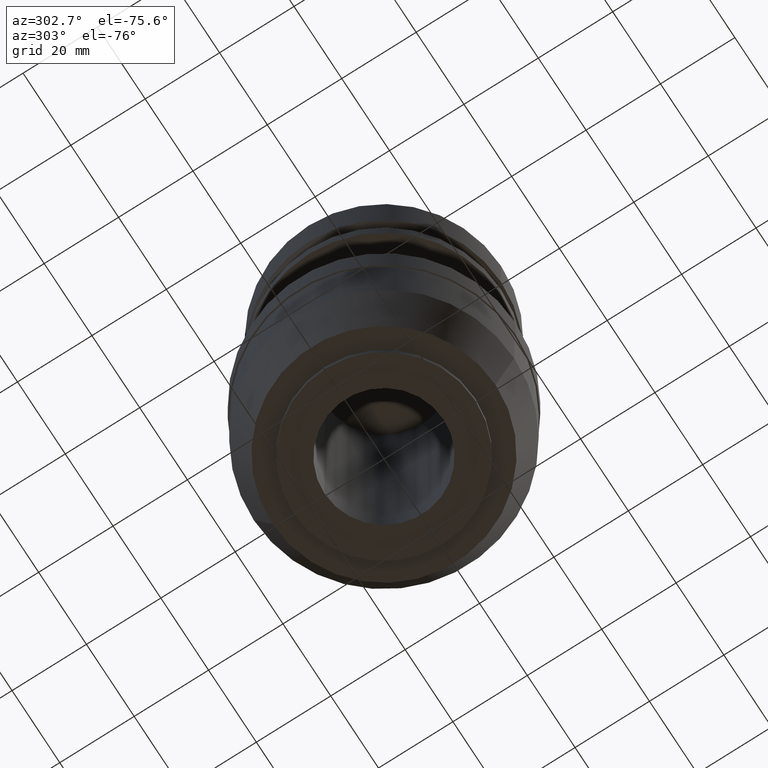
[diagram: clean part render]
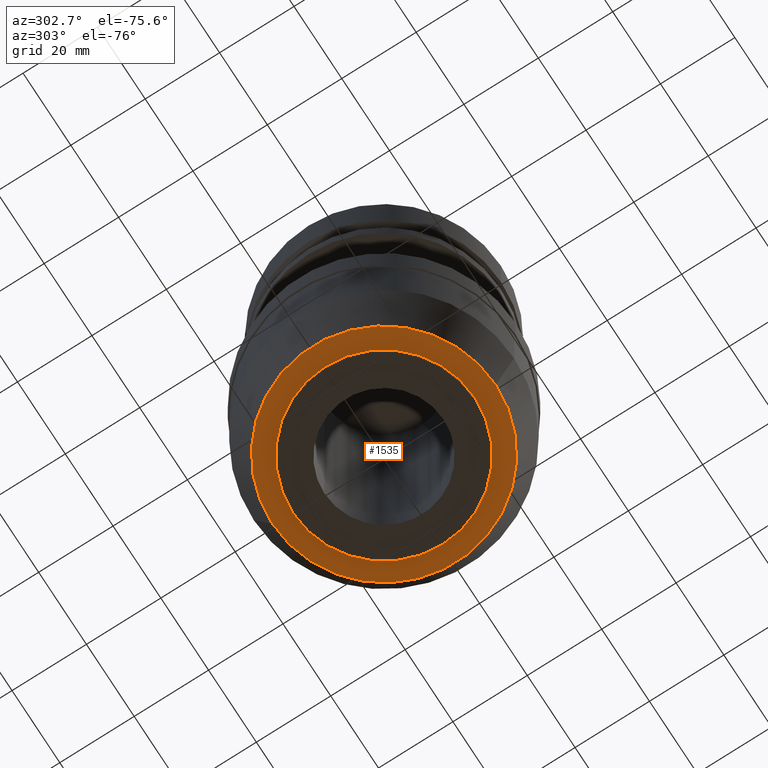
[diagram: same view with one face highlighted and labeled with its STEP entity id]
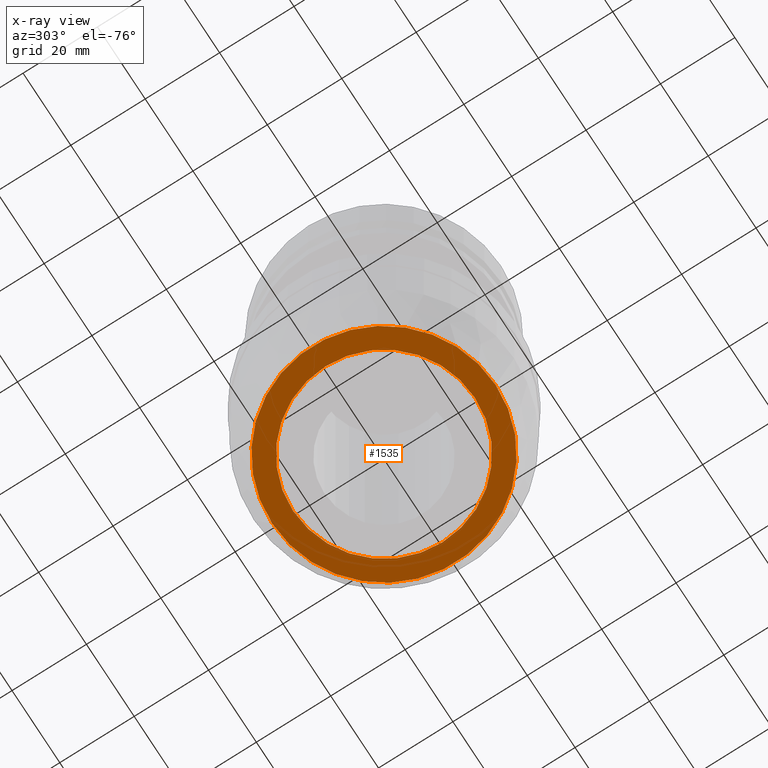
[diagram: x-ray of the same camera — body ghosted, the highlighted face saturated]
A machine part, auxiliary view. The second image highlights one B-rep face of the part: STEP entity #1535.
The next image is the same camera in x-ray: the body ghosted, the highlighted face saturated — about 0% of this face is hidden behind the body in this view.
In plain terms, the highlighted planar face has unit normal (0, 0, 1).
Its self-contained STEP definition (entity closure, byte-faithful):
#520=CARTESIAN_POINT('',(0.E0,0.E0,-1.05E2));
#521=DIRECTION('',(0.E0,0.E0,1.E0));
#522=DIRECTION('',(0.E0,-1.E0,0.E0));
#523=AXIS2_PLACEMENT_3D('',#520,#521,#522);
#528=CARTESIAN_POINT('',(0.E0,0.E0,-1.05E2));
#529=DIRECTION('',(0.E0,0.E0,1.E0));
#530=DIRECTION('',(0.E0,1.E0,0.E0));
#531=AXIS2_PLACEMENT_3D('',#528,#529,#530);
#536=CARTESIAN_POINT('',(0.E0,0.E0,-1.05E2));
#537=DIRECTION('',(0.E0,0.E0,-1.E0));
#538=DIRECTION('',(0.E0,-1.E0,0.E0));
#539=AXIS2_PLACEMENT_3D('',#536,#537,#538);
#544=CARTESIAN_POINT('',(0.E0,0.E0,-1.05E2));
#545=DIRECTION('',(0.E0,0.E0,-1.E0));
#546=DIRECTION('',(0.E0,1.E0,0.E0));
#547=AXIS2_PLACEMENT_3D('',#544,#545,#546);
#982=CARTESIAN_POINT('',(0.E0,3.001360779055E1,-1.05E2));
#983=VERTEX_POINT('',#982);
#984=CARTESIAN_POINT('',(0.E0,-3.001360779056E1,-1.05E2));
#985=VERTEX_POINT('',#984);
#986=CARTESIAN_POINT('',(0.E0,-2.445E1,-1.05E2));
#987=CARTESIAN_POINT('',(0.E0,2.445E1,-1.05E2));
#988=VERTEX_POINT('',#986);
#989=VERTEX_POINT('',#987);
#1520=CARTESIAN_POINT('',(0.E0,0.E0,-1.05E2));
#1521=DIRECTION('',(0.E0,0.E0,1.E0));
#1522=DIRECTION('',(0.E0,1.E0,0.E0));
#1523=AXIS2_PLACEMENT_3D('',#1520,#1521,#1522);
#1524=PLANE('',#1523);
#1525=ORIENTED_EDGE('',*,*,#1499,.T.);
#1526=ORIENTED_EDGE('',*,*,#1515,.T.);
#1527=EDGE_LOOP('',(#1525,#1526));
#1528=FACE_OUTER_BOUND('',#1527,.F.);
#1530=ORIENTED_EDGE('',*,*,#1529,.T.);
#1532=ORIENTED_EDGE('',*,*,#1531,.T.);
#1533=EDGE_LOOP('',(#1530,#1532));
#1534=FACE_BOUND('',#1533,.F.);
#524=CIRCLE('',#523,3.001360779056E1);
#532=CIRCLE('',#531,3.001360779056E1);
#540=CIRCLE('',#539,2.445E1);
#548=CIRCLE('',#547,2.445E1);
#1499=EDGE_CURVE('',#985,#983,#524,.T.);
#1515=EDGE_CURVE('',#983,#985,#532,.T.);
#1529=EDGE_CURVE('',#988,#989,#540,.T.);
#1531=EDGE_CURVE('',#989,#988,#548,.T.);
#1535=ADVANCED_FACE('',(#1528,#1534),#1524,.F.);